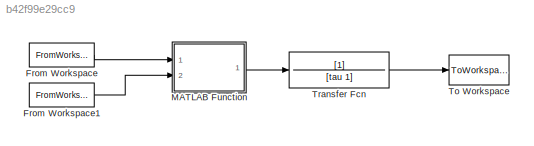
MODEL slx_b42f99e29cc9
KIND model
CONFIG AbsTol = auto
CONFIG EnableMultiTasking = off
CONFIG FixedStep = dt
CONFIG MaxStep = auto
CONFIG MinStep = auto
CONFIG RelTol = 1e-3
CONFIG SampleTimeConstraint = Unconstrained
CONFIG Solver = FixedStepAuto
CONFIG SolverName = FixedStepAuto
CONFIG StartTime = 0.0
CONFIG StopTime = time_end
BLOCK [FromWorkspace] From Workspace
  SampleTime = 0
  VariableName = u
  ZeroCross = on
BLOCK [FromWorkspace] From Workspace1
  SampleTime = 0
  VariableName = x
  ZeroCross = on
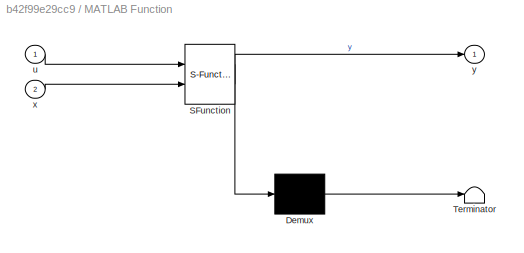
BLOCK [SubSystem] MATLAB Function
  ErrorFcn = Stateflow.Translate.translate
  PermitHierarchicalResolution = ExplicitOnly
  Ports = [2, 1]
  RequestExecContextInheritance = off
  SFBlockType = MATLAB Function
  TreatAsAtomicUnit = on
BLOCK [Demux] MATLAB Function/ Demux 
  Outputs = 1
  Ports = [1, 1]
BLOCK [S-Function] MATLAB Function/ SFunction 
  EnableBusSupport = on
  FunctionName = sf_sfun
  PortCounts = [2 2]
  Ports = [2, 2]
  SFcnIsStateOwnerBlock = off
  SFunctionDeploymentMode = off
  Tag = Stateflow S-Function sensor_2016 2
BLOCK [Terminator] MATLAB Function/ Terminator 
BLOCK [Inport] MATLAB Function/u
  IconDisplay = Port number
BLOCK [Inport] MATLAB Function/x
  IconDisplay = Port number
  Port = 2
BLOCK [Outport] MATLAB Function/y
  IconDisplay = Port number
BLOCK [ToWorkspace] To Workspace
  FixptAsFi = on
  MaxDataPoints = inf
  Ports = [1]
  SampleTime = -1
  Save2DSignal = 3-D array (concatenate along third dimension)
  SaveFormat = Timeseries
  VariableName = y
BLOCK [TransferFcn] Transfer Fcn
  Denominator = [tau 1]
LINE From Workspace1:1 -> MATLAB Function:2
LINE From Workspace:1 -> MATLAB Function:1
LINE MATLAB Function:1 -> Transfer Fcn:1
LINE Transfer Fcn:1 -> To Workspace:1
CHART MATLAB Function states=1 transitions=1
  STATE_LABEL 'eML_blk_kernel()'
  STATE_LABEL 'SCRIPT:\nfunction y = sensor(u,x)\n\n% mu & sigma\n% 固定値版、GPにするならここを変える\nmu = 0;\nsigma = 0;\nif (abs(u) < 15)\n    mu = 0.2482;\n    sigma = 0.3364;\nelseif ((15 <= abs(u)) && (abs(u) < 30))\n    mu = 1.3709;\n    sigma = 1.3709;\nelseif (30 <= abs(u))\n    mu = 3.2910;\n    sigma = 0.4885;\nend\n\ny = normrnd(sign(u)*(abs(u)+mu), sigma);\n'
